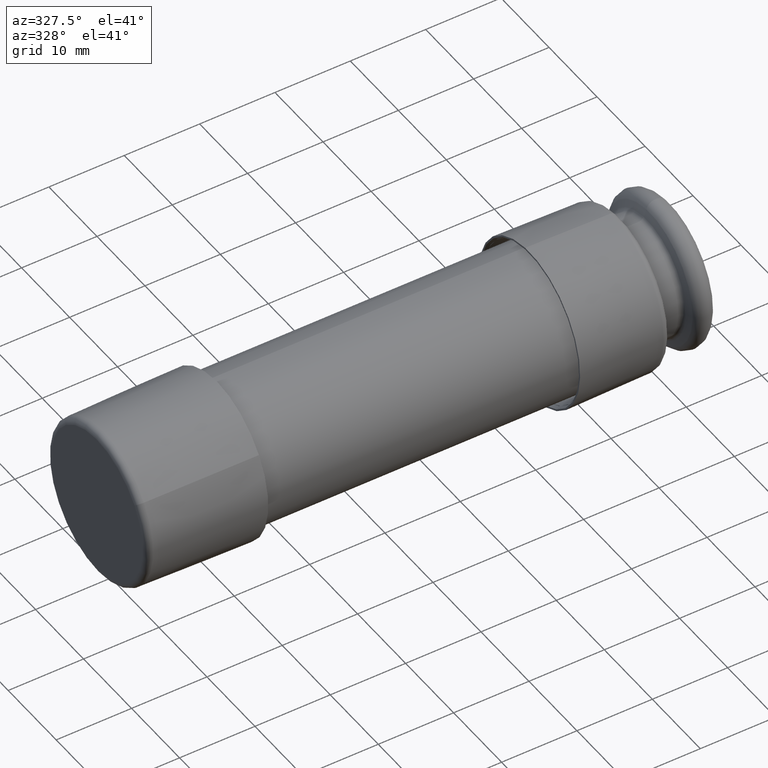
[diagram: clean part render]
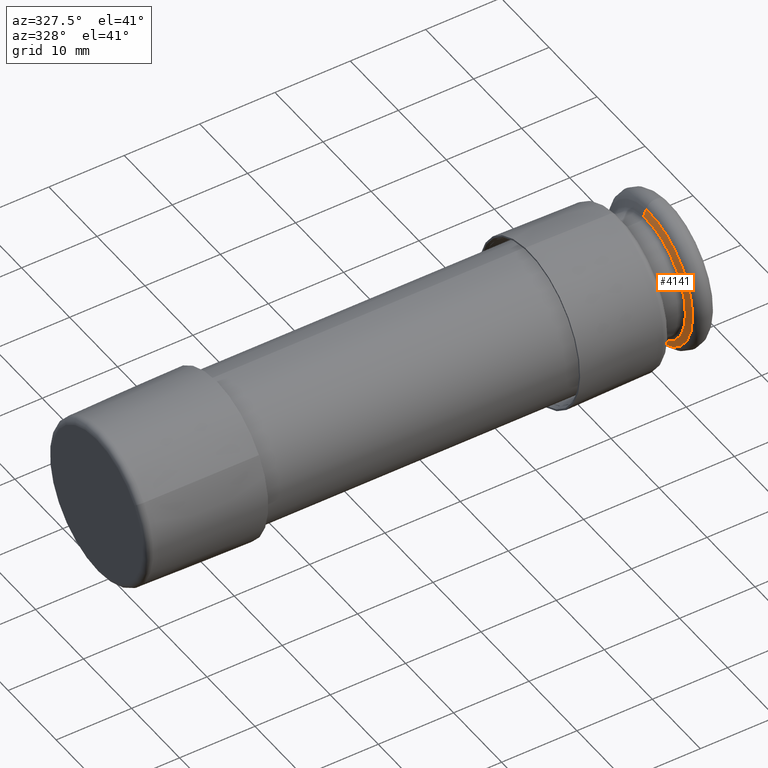
[diagram: same view with one face highlighted and labeled with its STEP entity id]
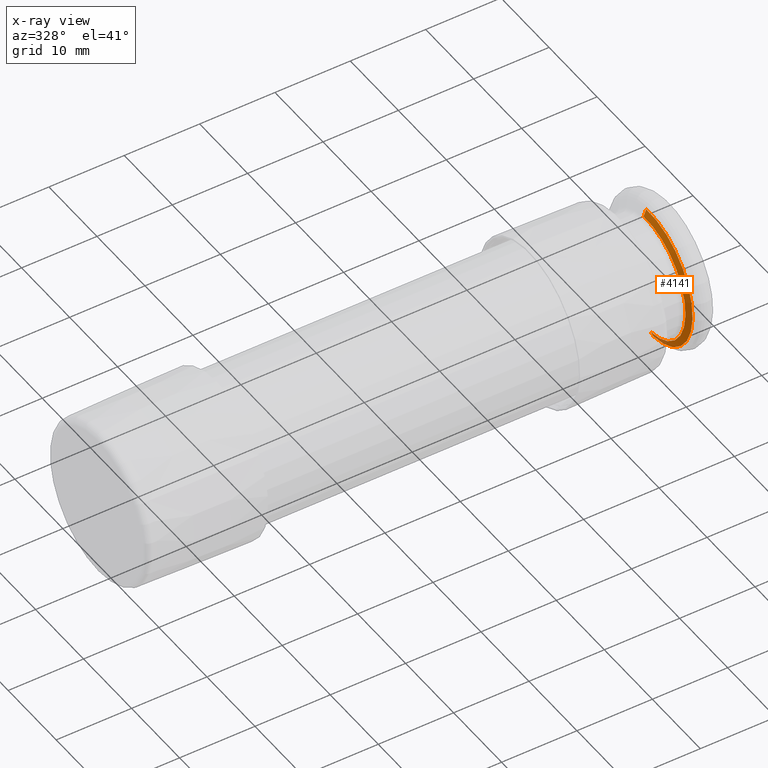
[diagram: x-ray of the same camera — body ghosted, the highlighted face saturated]
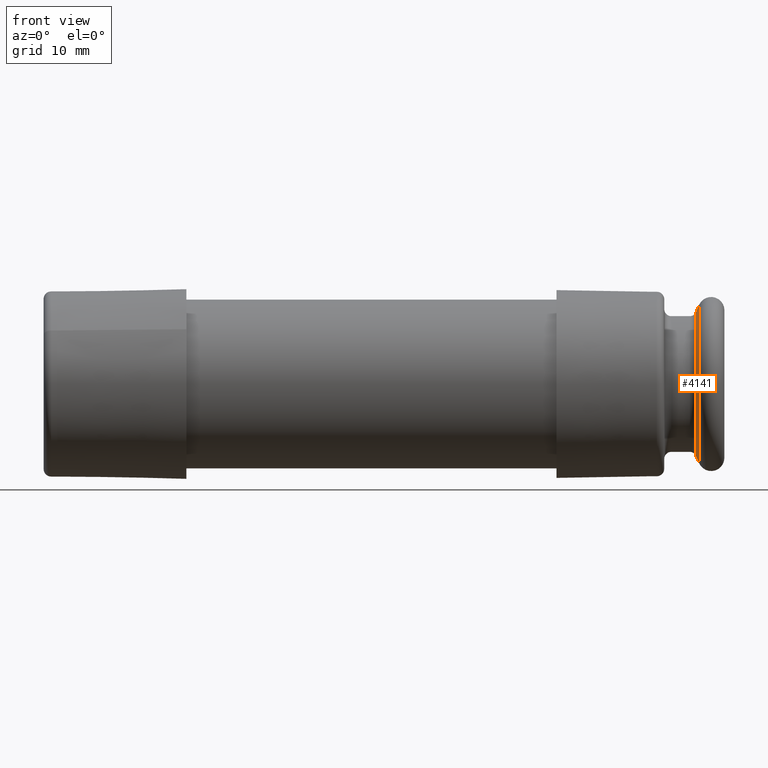
[diagram: same view with one face highlighted and labeled with its STEP entity id]
A machine part, auxiliary view. The second image highlights one B-rep face of the part: STEP entity #4141.
The next image is the same camera in x-ray: the body ghosted, the highlighted face saturated — about 4% of this face is hidden behind the body in this view.
A second angle (front view) of the same face is appended — the face is thin or edge-on in the first view.
In plain terms, the highlighted conical surface has half-angle 65.723 deg.
Its self-contained STEP definition (entity closure, byte-faithful):
#566 = LINE ( 'NONE', #6144, #9974 ) ;
#735 = CONICAL_SURFACE ( 'NONE', #3741, 0.3165533006542423600, 1.147077265582223000 ) ;
#860 = CIRCLE ( 'NONE', #2180, 0.3507559764661543600 ) ;
#1578 = EDGE_LOOP ( 'NONE', ( #4333, #11248, #9633, #9981 ) ) ;
#1822 = EDGE_CURVE ( 'NONE', #5928, #6397, #7234, .T. ) ;
#2180 = AXIS2_PLACEMENT_3D ( 'NONE', #5052, #4113, #9781 ) ;
#2994 = DIRECTION ( 'NONE',  ( -1.725995583061788300E-015, -0.08610538414068724700, -0.9962860346416507800 ) ) ;
#3741 = AXIS2_PLACEMENT_3D ( 'NONE', #5938, #9275, #2994 ) ;
#4113 = DIRECTION ( 'NONE',  ( 1.000000000000000000, 1.032664680745914000E-014, -2.629012118763709900E-015 ) ) ;
#4141 = ADVANCED_FACE ( 'NONE', ( #7482 ), #735, .T. ) ;
#4333 = ORIENTED_EDGE ( 'NONE', *, *, #5031, .F. ) ;
#4630 = CARTESIAN_POINT ( 'NONE',  ( 1.634575717623822000, -0.03020197809323388700, -0.3494532809203316800 ) ) ;
#5031 = EDGE_CURVE ( 'NONE', #9035, #10368, #566, .T. ) ;
#5052 = CARTESIAN_POINT ( 'NONE',  ( 1.634575717623822500, 2.618383144547448000E-014, -6.696619715512752900E-015 ) ) ;
#5094 = DIRECTION ( 'NONE',  ( 1.000000000000000000, 1.032664680745914000E-014, -2.629012118763709900E-015 ) ) ;
#5422 = EDGE_CURVE ( 'NONE', #10368, #6397, #860, .T. ) ;
#5790 = CARTESIAN_POINT ( 'NONE',  ( 1.619148917745331300, -0.02725694355380997600, -0.3153776326615480000 ) ) ;
#5928 = VERTEX_POINT ( 'NONE', #5790 ) ;
#5938 = CARTESIAN_POINT ( 'NONE',  ( 1.619148917745331800, 2.602452433175995500E-014, -6.656062471678458400E-015 ) ) ;
#6010 = CARTESIAN_POINT ( 'NONE',  ( 1.634575717623823100, 0.03020197809328629600, 0.3494532809203183500 ) ) ;
#6144 = CARTESIAN_POINT ( 'NONE',  ( 1.619148917745332200, 0.02725694355386206600, 0.3153776326615347300 ) ) ;
#6397 = VERTEX_POINT ( 'NONE', #4630 ) ;
#6876 = DIRECTION ( 'NONE',  ( 0.4111534589439736500, -0.07849075291900814400, -0.9081806179965598000 ) ) ;
#6957 = CARTESIAN_POINT ( 'NONE',  ( 1.619148917745331300, -0.02725694355380997600, -0.3153776326615480000 ) ) ;
#7234 = LINE ( 'NONE', #6957, #9453 ) ;
#7482 = FACE_OUTER_BOUND ( 'NONE', #1578, .T. ) ;
#8886 = CARTESIAN_POINT ( 'NONE',  ( 1.619148917745331800, 2.602452433175995500E-014, -6.656062471678458400E-015 ) ) ;
#8893 = EDGE_CURVE ( 'NONE', #9035, #5928, #10871, .T. ) ;
#8926 = DIRECTION ( 'NONE',  ( 0.4111534589439768100, 0.07849075291901674900, 0.9081806179965576900 ) ) ;
#9035 = VERTEX_POINT ( 'NONE', #10278 ) ;
#9275 = DIRECTION ( 'NONE',  ( 1.000000000000000000, 1.032664680745914000E-014, -2.629012118763709900E-015 ) ) ;
#9453 = VECTOR ( 'NONE', #6876, 39.37007874015748100 ) ;
#9633 = ORIENTED_EDGE ( 'NONE', *, *, #1822, .T. ) ;
#9781 = DIRECTION ( 'NONE',  ( -1.557691487505056600E-015, -0.08610538414068724700, -0.9962860346416507800 ) ) ;
#9974 = VECTOR ( 'NONE', #8926, 39.37007874015748900 ) ;
#9981 = ORIENTED_EDGE ( 'NONE', *, *, #5422, .F. ) ;
#10278 = CARTESIAN_POINT ( 'NONE',  ( 1.619148917745332200, 0.02725694355386206600, 0.3153776326615347300 ) ) ;
#10368 = VERTEX_POINT ( 'NONE', #6010 ) ;
#10803 = DIRECTION ( 'NONE',  ( -1.725995583061788300E-015, -0.08610538414068724700, -0.9962860346416507800 ) ) ;
#10871 = CIRCLE ( 'NONE', #11682, 0.3165533006542423600 ) ;
#11248 = ORIENTED_EDGE ( 'NONE', *, *, #8893, .T. ) ;
#11682 = AXIS2_PLACEMENT_3D ( 'NONE', #8886, #5094, #10803 ) ;